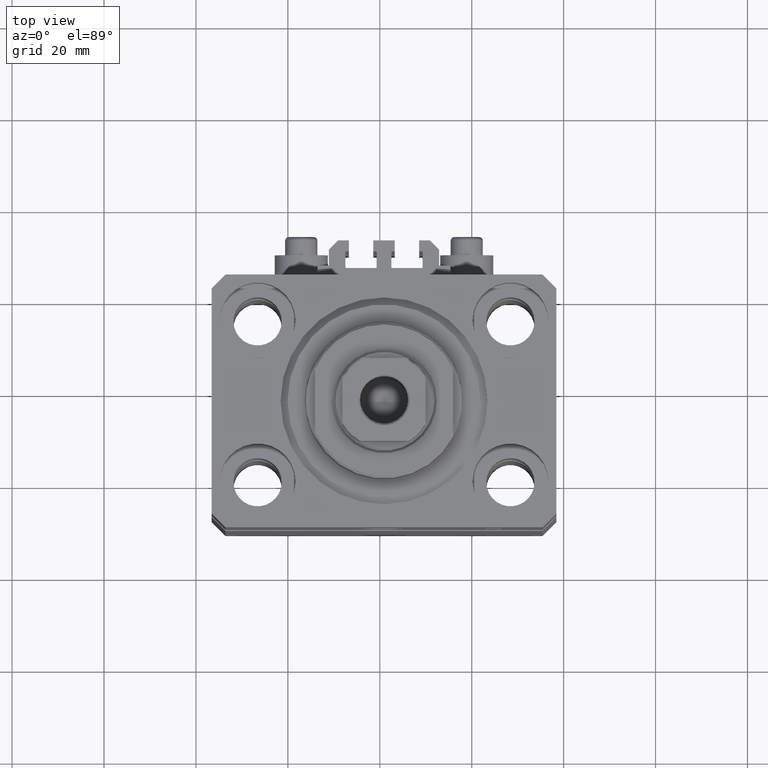
[diagram: clean part render]
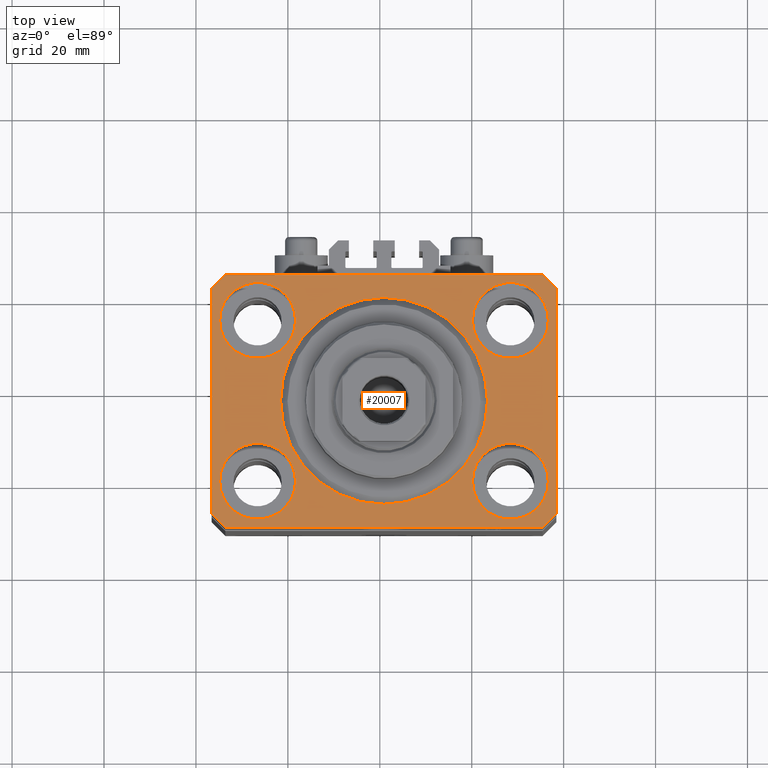
[diagram: same view with one face highlighted and labeled with its STEP entity id]
A machine part, top view. The second image highlights one B-rep face of the part: STEP entity #20007.
In plain terms, the highlighted planar face has unit normal (0, 0, 1).
Its self-contained STEP definition (entity closure, byte-faithful):
#149 = VERTEX_POINT ( 'NONE', #306 ) ;
#264 = DIRECTION ( 'NONE',  ( 1.000000000000000000, 0.000000000000000000, 0.000000000000000000 ) ) ;
#287 = FACE_BOUND ( 'NONE', #9853, .T. ) ;
#306 = CARTESIAN_POINT ( 'NONE',  ( 37.50000000000051870, 24.49999999999995381, 0.000000000000000000 ) ) ;
#387 = CARTESIAN_POINT ( 'NONE',  ( 34.49999999999999289, -27.49999999999999645, 0.000000000000000000 ) ) ;
#682 = VECTOR ( 'NONE', #5614, 1000.000000000000000 ) ;
#781 = CARTESIAN_POINT ( 'NONE',  ( -27.50000000000000355, 17.50000000000000000, 0.000000000000000000 ) ) ;
#853 = LINE ( 'NONE', #387, #43458 ) ;
#959 = EDGE_CURVE ( 'NONE', #25958, #42095, #17706, .T. ) ;
#984 = FACE_BOUND ( 'NONE', #2974, .T. ) ;
#1067 = DIRECTION ( 'NONE',  ( 1.000000000000000000, 0.000000000000000000, 0.000000000000000000 ) ) ;
#1068 = LINE ( 'NONE', #11982, #30876 ) ;
#1472 = AXIS2_PLACEMENT_3D ( 'NONE', #9889, #20320, #6096 ) ;
#1962 = ORIENTED_EDGE ( 'NONE', *, *, #7383, .T. ) ;
#1996 = DIRECTION ( 'NONE',  ( 0.000000000000000000, 0.000000000000000000, 1.000000000000000000 ) ) ;
#2072 = VERTEX_POINT ( 'NONE', #33988 ) ;
#2974 = EDGE_LOOP ( 'NONE', ( #46126, #43825 ) ) ;
#3330 = EDGE_CURVE ( 'NONE', #32812, #149, #31494, .T. ) ;
#3607 = VERTEX_POINT ( 'NONE', #8728 ) ;
#4792 = CARTESIAN_POINT ( 'NONE',  ( -37.49999999999999289, -24.50000000000000000, 0.000000000000000000 ) ) ;
#4793 = CARTESIAN_POINT ( 'NONE',  ( -34.49999999999999289, 27.50000000000000000, 0.000000000000000000 ) ) ;
#5535 = CARTESIAN_POINT ( 'NONE',  ( 34.50000000000056843, 27.50000000000000000, 0.000000000000000000 ) ) ;
#5577 = VECTOR ( 'NONE', #43328, 1000.000000000000000 ) ;
#5588 = EDGE_CURVE ( 'NONE', #2072, #32812, #853, .T. ) ;
#5614 = DIRECTION ( 'NONE',  ( 1.000000000000000000, 0.000000000000000000, 0.000000000000000000 ) ) ;
#5622 = AXIS2_PLACEMENT_3D ( 'NONE', #29348, #18470, #25329 ) ;
#5933 = VERTEX_POINT ( 'NONE', #29765 ) ;
#6043 = VERTEX_POINT ( 'NONE', #41128 ) ;
#6096 = DIRECTION ( 'NONE',  ( 1.000000000000000000, 0.000000000000000000, 0.000000000000000000 ) ) ;
#6194 = CIRCLE ( 'NONE', #28140, 8.250000000000000000 ) ;
#7185 = ORIENTED_EDGE ( 'NONE', *, *, #21982, .F. ) ;
#7249 = CARTESIAN_POINT ( 'NONE',  ( -27.50000000000000355, -17.50000000000000000, 0.000000000000000000 ) ) ;
#7383 = EDGE_CURVE ( 'NONE', #28490, #30349, #14982, .T. ) ;
#8005 = ORIENTED_EDGE ( 'NONE', *, *, #36499, .F. ) ;
#8239 = VECTOR ( 'NONE', #14052, 1000.000000000000000 ) ;
#8602 = EDGE_CURVE ( 'NONE', #19007, #30032, #37468, .T. ) ;
#8728 = CARTESIAN_POINT ( 'NONE',  ( -19.25000000000000355, 17.50000000000000000, 0.000000000000000000 ) ) ;
#8937 = CARTESIAN_POINT ( 'NONE',  ( 19.25000000000000000, 17.50000000000001066, 0.000000000000000000 ) ) ;
#9639 = ORIENTED_EDGE ( 'NONE', *, *, #3330, .T. ) ;
#9853 = EDGE_LOOP ( 'NONE', ( #10859, #8005 ) ) ;
#9889 = CARTESIAN_POINT ( 'NONE',  ( 0.000000000000000000, 0.000000000000000000, 0.000000000000000000 ) ) ;
#10044 = LINE ( 'NONE', #17404, #20977 ) ;
#10594 = CIRCLE ( 'NONE', #25728, 22.50000000000000355 ) ;
#10697 = CARTESIAN_POINT ( 'NONE',  ( 0.000000000000000000, 0.000000000000000000, 0.000000000000000000 ) ) ;
#10859 = ORIENTED_EDGE ( 'NONE', *, *, #41667, .F. ) ;
#11208 = EDGE_LOOP ( 'NONE', ( #15822, #25379 ) ) ;
#11659 = FACE_OUTER_BOUND ( 'NONE', #19141, .T. ) ;
#11982 = CARTESIAN_POINT ( 'NONE',  ( -37.49999999999999289, -24.50000000000000000, 0.000000000000000000 ) ) ;
#12040 = CARTESIAN_POINT ( 'NONE',  ( -34.49999999999998579, -27.49999999999999645, 0.000000000000000000 ) ) ;
#12295 = CARTESIAN_POINT ( 'NONE',  ( -19.25000000000000355, -17.50000000000000000, 0.000000000000000000 ) ) ;
#12470 = EDGE_CURVE ( 'NONE', #29036, #28490, #10044, .T. ) ;
#12748 = LINE ( 'NONE', #12040, #682 ) ;
#13178 = AXIS2_PLACEMENT_3D ( 'NONE', #24557, #36605, #1067 ) ;
#13272 = VECTOR ( 'NONE', #19250, 1000.000000000000000 ) ;
#13448 = EDGE_CURVE ( 'NONE', #22987, #3607, #26304, .T. ) ;
#13482 = CIRCLE ( 'NONE', #1472, 22.50000000000000355 ) ;
#13551 = DIRECTION ( 'NONE',  ( 1.000000000000000000, 0.000000000000000000, 0.000000000000000000 ) ) ;
#14052 = DIRECTION ( 'NONE',  ( 0.000000000000000000, -1.000000000000000000, 0.000000000000000000 ) ) ;
#14121 = DIRECTION ( 'NONE',  ( 0.000000000000000000, 0.000000000000000000, 1.000000000000000000 ) ) ;
#14596 = DIRECTION ( 'NONE',  ( 1.000000000000000000, 0.000000000000000000, 0.000000000000000000 ) ) ;
#14968 = FACE_BOUND ( 'NONE', #11208, .T. ) ;
#14982 = LINE ( 'NONE', #4793, #13272 ) ;
#15571 = CARTESIAN_POINT ( 'NONE',  ( -34.49999999999998579, -27.49999999999999645, 0.000000000000000000 ) ) ;
#15822 = ORIENTED_EDGE ( 'NONE', *, *, #8602, .F. ) ;
#17067 = AXIS2_PLACEMENT_3D ( 'NONE', #7249, #14121, #14596 ) ;
#17404 = CARTESIAN_POINT ( 'NONE',  ( 34.50000000000056843, 27.50000000000000000, 0.000000000000000000 ) ) ;
#17706 = CIRCLE ( 'NONE', #13178, 8.250000000000000000 ) ;
#18470 = DIRECTION ( 'NONE',  ( 0.000000000000000000, 0.000000000000000000, 1.000000000000000000 ) ) ;
#18533 = FACE_BOUND ( 'NONE', #27122, .T. ) ;
#19007 = VERTEX_POINT ( 'NONE', #12295 ) ;
#19141 = EDGE_LOOP ( 'NONE', ( #28578, #1962, #34883, #40453, #26694, #33569, #9639, #36234 ) ) ;
#19250 = DIRECTION ( 'NONE',  ( -0.7071067811865471286, -0.7071067811865479058, 0.000000000000000000 ) ) ;
#20007 = ADVANCED_FACE ( 'NONE', ( #14968, #44341, #18533, #984, #287, #11659 ), #22086, .T. ) ;
#20009 = CARTESIAN_POINT ( 'NONE',  ( -27.50000000000000355, -17.50000000000000000, 0.000000000000000000 ) ) ;
#20320 = DIRECTION ( 'NONE',  ( 0.000000000000000000, 0.000000000000000000, 1.000000000000000000 ) ) ;
#20602 = LINE ( 'NONE', #38832, #37754 ) ;
#20891 = CARTESIAN_POINT ( 'NONE',  ( 27.50000000000000355, -17.50000000000000000, 0.000000000000000000 ) ) ;
#20977 = VECTOR ( 'NONE', #24489, 1000.000000000000000 ) ;
#21135 = CARTESIAN_POINT ( 'NONE',  ( 19.25000000000000000, -17.50000000000000000, 0.000000000000000000 ) ) ;
#21450 = CARTESIAN_POINT ( 'NONE',  ( 37.49999999999999289, -24.50000000000000000, 0.000000000000000000 ) ) ;
#21474 = EDGE_LOOP ( 'NONE', ( #32240, #31474 ) ) ;
#21609 = DIRECTION ( 'NONE',  ( 1.000000000000000000, 0.000000000000000000, -0.000000000000000000 ) ) ;
#21982 = EDGE_CURVE ( 'NONE', #35952, #6043, #22700, .T. ) ;
#22086 = PLANE ( 'NONE',  #41525 ) ;
#22198 = VERTEX_POINT ( 'NONE', #4792 ) ;
#22469 = CARTESIAN_POINT ( 'NONE',  ( 35.75000000000000711, -17.50000000000000000, 0.000000000000000000 ) ) ;
#22700 = CIRCLE ( 'NONE', #35534, 8.249999999999992895 ) ;
#22987 = VERTEX_POINT ( 'NONE', #37386 ) ;
#23807 = EDGE_CURVE ( 'NONE', #6043, #35952, #44213, .T. ) ;
#23858 = CIRCLE ( 'NONE', #32898, 8.250000000000000000 ) ;
#24022 = DIRECTION ( 'NONE',  ( 0.000000000000000000, 0.000000000000000000, 1.000000000000000000 ) ) ;
#24489 = DIRECTION ( 'NONE',  ( -1.000000000000000000, 0.000000000000000000, 0.000000000000000000 ) ) ;
#24557 = CARTESIAN_POINT ( 'NONE',  ( 27.50000000000000355, -17.50000000000000000, 0.000000000000000000 ) ) ;
#24953 = LINE ( 'NONE', #46285, #8239 ) ;
#25329 = DIRECTION ( 'NONE',  ( 1.000000000000000000, 0.000000000000000000, 0.000000000000000000 ) ) ;
#25379 = ORIENTED_EDGE ( 'NONE', *, *, #46057, .F. ) ;
#25728 = AXIS2_PLACEMENT_3D ( 'NONE', #10697, #36263, #264 ) ;
#25958 = VERTEX_POINT ( 'NONE', #21135 ) ;
#26291 = CARTESIAN_POINT ( 'NONE',  ( -37.49999999999999289, 24.50000000000000000, 0.000000000000000000 ) ) ;
#26304 = CIRCLE ( 'NONE', #31612, 8.250000000000000000 ) ;
#26608 = EDGE_CURVE ( 'NONE', #3607, #22987, #23858, .T. ) ;
#26694 = ORIENTED_EDGE ( 'NONE', *, *, #39819, .T. ) ;
#26744 = CARTESIAN_POINT ( 'NONE',  ( -34.49999999999999289, 27.50000000000000000, 0.000000000000000000 ) ) ;
#27122 = EDGE_LOOP ( 'NONE', ( #37634, #7185 ) ) ;
#28009 = CARTESIAN_POINT ( 'NONE',  ( -27.50000000000000355, 17.50000000000000000, 0.000000000000000000 ) ) ;
#28140 = AXIS2_PLACEMENT_3D ( 'NONE', #20009, #1996, #38243 ) ;
#28490 = VERTEX_POINT ( 'NONE', #26744 ) ;
#28578 = ORIENTED_EDGE ( 'NONE', *, *, #12470, .T. ) ;
#29036 = VERTEX_POINT ( 'NONE', #5535 ) ;
#29348 = CARTESIAN_POINT ( 'NONE',  ( 27.49999999999999645, 17.50000000000001066, 0.000000000000000000 ) ) ;
#29435 = DIRECTION ( 'NONE',  ( 0.000000000000000000, 0.000000000000000000, 1.000000000000000000 ) ) ;
#29670 = DIRECTION ( 'NONE',  ( 1.000000000000000000, 0.000000000000000000, 0.000000000000000000 ) ) ;
#29765 = CARTESIAN_POINT ( 'NONE',  ( -22.50000000000000355, 2.755455298081544383E-15, 0.000000000000000000 ) ) ;
#30032 = VERTEX_POINT ( 'NONE', #38176 ) ;
#30349 = VERTEX_POINT ( 'NONE', #26291 ) ;
#30856 = DIRECTION ( 'NONE',  ( 0.000000000000000000, 0.000000000000000000, 1.000000000000000000 ) ) ;
#30876 = VECTOR ( 'NONE', #44673, 1000.000000000000000 ) ;
#31474 = ORIENTED_EDGE ( 'NONE', *, *, #959, .F. ) ;
#31494 = LINE ( 'NONE', #46650, #5577 ) ;
#31582 = DIRECTION ( 'NONE',  ( 1.000000000000000000, 0.000000000000000000, 0.000000000000000000 ) ) ;
#31612 = AXIS2_PLACEMENT_3D ( 'NONE', #781, #29435, #29670 ) ;
#32240 = ORIENTED_EDGE ( 'NONE', *, *, #35776, .F. ) ;
#32812 = VERTEX_POINT ( 'NONE', #21450 ) ;
#32898 = AXIS2_PLACEMENT_3D ( 'NONE', #28009, #30856, #34638 ) ;
#33569 = ORIENTED_EDGE ( 'NONE', *, *, #5588, .T. ) ;
#33988 = CARTESIAN_POINT ( 'NONE',  ( 34.49999999999999289, -27.49999999999999645, 0.000000000000000000 ) ) ;
#34638 = DIRECTION ( 'NONE',  ( 1.000000000000000000, 0.000000000000000000, 0.000000000000000000 ) ) ;
#34670 = EDGE_CURVE ( 'NONE', #149, #29036, #20602, .T. ) ;
#34733 = CIRCLE ( 'NONE', #40791, 8.250000000000000000 ) ;
#34883 = ORIENTED_EDGE ( 'NONE', *, *, #35329, .T. ) ;
#35258 = DIRECTION ( 'NONE',  ( -0.7071067811865356934, 0.7071067811865594521, 0.000000000000000000 ) ) ;
#35329 = EDGE_CURVE ( 'NONE', #30349, #22198, #24953, .T. ) ;
#35534 = AXIS2_PLACEMENT_3D ( 'NONE', #37997, #24022, #31582 ) ;
#35776 = EDGE_CURVE ( 'NONE', #42095, #25958, #34733, .T. ) ;
#35952 = VERTEX_POINT ( 'NONE', #8937 ) ;
#36234 = ORIENTED_EDGE ( 'NONE', *, *, #34670, .T. ) ;
#36263 = DIRECTION ( 'NONE',  ( 0.000000000000000000, 0.000000000000000000, 1.000000000000000000 ) ) ;
#36499 = EDGE_CURVE ( 'NONE', #5933, #41458, #13482, .T. ) ;
#36605 = DIRECTION ( 'NONE',  ( 0.000000000000000000, 0.000000000000000000, 1.000000000000000000 ) ) ;
#36721 = EDGE_CURVE ( 'NONE', #22198, #45392, #1068, .T. ) ;
#36750 = DIRECTION ( 'NONE',  ( 0.000000000000000000, 0.000000000000000000, 1.000000000000000000 ) ) ;
#37386 = CARTESIAN_POINT ( 'NONE',  ( -35.75000000000000711, 17.50000000000000000, 0.000000000000000000 ) ) ;
#37468 = CIRCLE ( 'NONE', #17067, 8.250000000000000000 ) ;
#37634 = ORIENTED_EDGE ( 'NONE', *, *, #23807, .F. ) ;
#37728 = CARTESIAN_POINT ( 'NONE',  ( 22.50000000000000355, 0.000000000000000000, 0.000000000000000000 ) ) ;
#37754 = VECTOR ( 'NONE', #35258, 1000.000000000000114 ) ;
#37997 = CARTESIAN_POINT ( 'NONE',  ( 27.49999999999999645, 17.50000000000001066, 0.000000000000000000 ) ) ;
#38176 = CARTESIAN_POINT ( 'NONE',  ( -35.75000000000000711, -17.50000000000000000, 0.000000000000000000 ) ) ;
#38243 = DIRECTION ( 'NONE',  ( 1.000000000000000000, 0.000000000000000000, 0.000000000000000000 ) ) ;
#38832 = CARTESIAN_POINT ( 'NONE',  ( 37.50000000000051870, 24.49999999999995381, 0.000000000000000000 ) ) ;
#39571 = DIRECTION ( 'NONE',  ( 0.000000000000000000, 0.000000000000000000, 1.000000000000000000 ) ) ;
#39819 = EDGE_CURVE ( 'NONE', #45392, #2072, #12748, .T. ) ;
#40085 = CARTESIAN_POINT ( 'NONE',  ( 0.000000000000000000, 0.000000000000000000, 0.000000000000000000 ) ) ;
#40453 = ORIENTED_EDGE ( 'NONE', *, *, #36721, .T. ) ;
#40791 = AXIS2_PLACEMENT_3D ( 'NONE', #20891, #39571, #13551 ) ;
#41128 = CARTESIAN_POINT ( 'NONE',  ( 35.74999999999999289, 17.50000000000001066, 0.000000000000000000 ) ) ;
#41458 = VERTEX_POINT ( 'NONE', #37728 ) ;
#41525 = AXIS2_PLACEMENT_3D ( 'NONE', #40085, #36750, #21609 ) ;
#41667 = EDGE_CURVE ( 'NONE', #41458, #5933, #10594, .T. ) ;
#42095 = VERTEX_POINT ( 'NONE', #22469 ) ;
#43328 = DIRECTION ( 'NONE',  ( 1.076236605503979380E-14, 1.000000000000000000, 0.000000000000000000 ) ) ;
#43458 = VECTOR ( 'NONE', #46829, 1000.000000000000114 ) ;
#43825 = ORIENTED_EDGE ( 'NONE', *, *, #13448, .F. ) ;
#44213 = CIRCLE ( 'NONE', #5622, 8.249999999999992895 ) ;
#44341 = FACE_BOUND ( 'NONE', #21474, .T. ) ;
#44673 = DIRECTION ( 'NONE',  ( 0.7071067811865483499, -0.7071067811865466846, 0.000000000000000000 ) ) ;
#45392 = VERTEX_POINT ( 'NONE', #15571 ) ;
#46057 = EDGE_CURVE ( 'NONE', #30032, #19007, #6194, .T. ) ;
#46126 = ORIENTED_EDGE ( 'NONE', *, *, #26608, .F. ) ;
#46285 = CARTESIAN_POINT ( 'NONE',  ( -37.49999999999999289, 24.50000000000000000, 0.000000000000000000 ) ) ;
#46650 = CARTESIAN_POINT ( 'NONE',  ( 37.49999999999999289, -24.50000000000000000, 0.000000000000000000 ) ) ;
#46829 = DIRECTION ( 'NONE',  ( 0.7071067811865474617, 0.7071067811865474617, 0.000000000000000000 ) ) ;